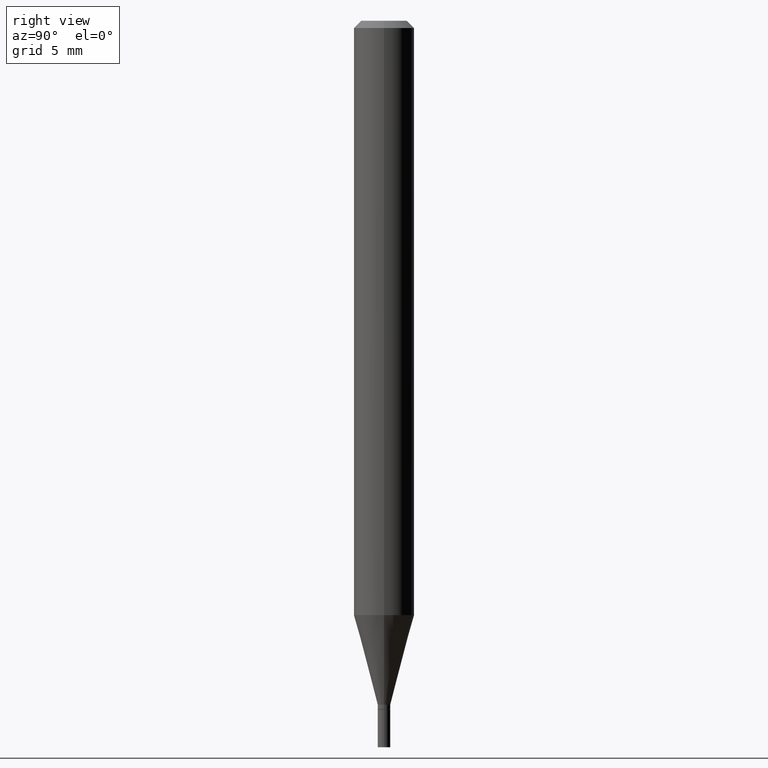
[diagram: clean part render]
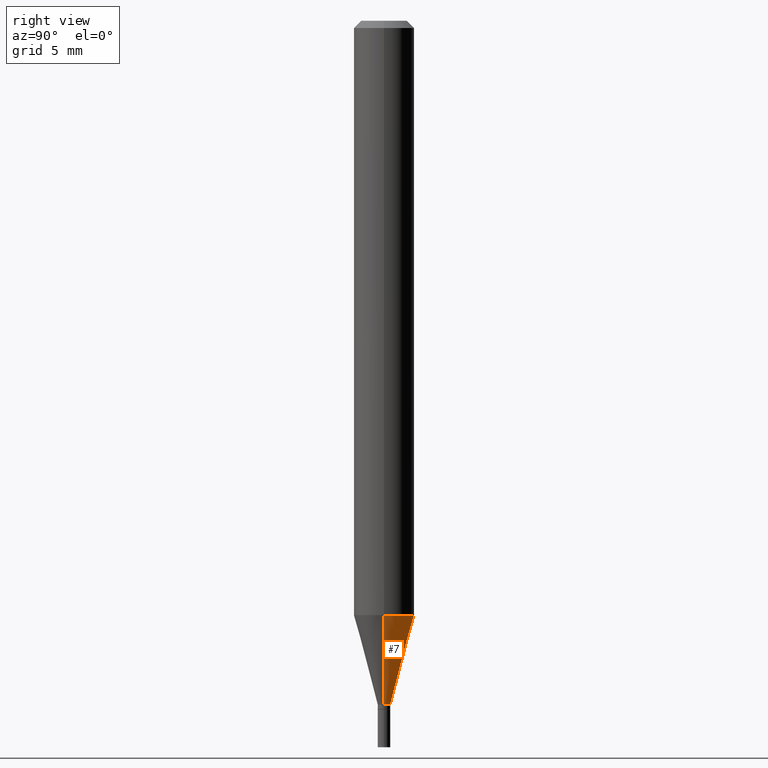
[diagram: same view with one face highlighted and labeled with its STEP entity id]
A machine part, right view. The second image highlights one B-rep face of the part: STEP entity #7.
In plain terms, the highlighted conical surface has half-angle 15 deg.
Its self-contained STEP definition (entity closure, byte-faithful):
#1 = CARTESIAN_POINT ( 'NONE',  ( 0.06249999999999999306, -4.721402723164972337E-15, -1.227263485025340550 ) ) ;
#7 = ADVANCED_FACE ( 'NONE', ( #202 ), #26, .T. ) ;
#24 = ORIENTED_EDGE ( 'NONE', *, *, #307, .F. ) ;
#26 = CONICAL_SURFACE ( 'NONE', #196, 0.01299999999999992134, 0.2617993877991495189 ) ;
#38 = AXIS2_PLACEMENT_3D ( 'NONE', #232, #54, #368 ) ;
#39 = CARTESIAN_POINT ( 'NONE',  ( 0.01299999999999992134, -5.020750165256443057E-15, -1.412000000000000144 ) ) ;
#54 = DIRECTION ( 'NONE',  ( -2.445468806185136597E-29, 3.491481338843145583E-15, 1.000000000000000000 ) ) ;
#60 = VERTEX_POINT ( 'NONE', #1 ) ;
#72 = VERTEX_POINT ( 'NONE', #39 ) ;
#82 = DIRECTION ( 'NONE',  ( 0.2588190451025207950, 1.565188264969625912E-15, 0.9659258262890682012 ) ) ;
#85 = AXIS2_PLACEMENT_3D ( 'NONE', #432, #363, #257 ) ;
#93 = VECTOR ( 'NONE', #82, 39.37007874015748854 ) ;
#114 = LINE ( 'NONE', #398, #93 ) ;
#123 = CARTESIAN_POINT ( 'NONE',  ( 3.453001954333413314E-29, -4.929971650446521716E-15, -1.412000000000000144 ) ) ;
#165 = VERTEX_POINT ( 'NONE', #429 ) ;
#186 = CARTESIAN_POINT ( 'NONE',  ( -0.01299999999999992134, -4.837601094797709398E-15, -1.412000000000000144 ) ) ;
#192 = ORIENTED_EDGE ( 'NONE', *, *, #226, .T. ) ;
#196 = AXIS2_PLACEMENT_3D ( 'NONE', #123, #406, #306 ) ;
#202 = FACE_OUTER_BOUND ( 'NONE', #204, .T. ) ;
#204 = EDGE_LOOP ( 'NONE', ( #457, #192, #382, #24 ) ) ;
#219 = CIRCLE ( 'NONE', #38, 0.06250000000000000000 ) ;
#222 = VECTOR ( 'NONE', #263, 39.37007874015748854 ) ;
#223 = CARTESIAN_POINT ( 'NONE',  ( -0.01299999999999992134, -4.339239720378613725E-15, -1.412000000000000144 ) ) ;
#226 = EDGE_CURVE ( 'NONE', #311, #165, #397, .T. ) ;
#232 = CARTESIAN_POINT ( 'NONE',  ( 3.001234569599529890E-29, -4.284967555809580668E-15, -1.227263485025340550 ) ) ;
#257 = DIRECTION ( 'NONE',  ( 1.000000000000000000, -6.982962677686299843E-15, 0.000000000000000000 ) ) ;
#263 = DIRECTION ( 'NONE',  ( -0.2588190451025207950, 5.211531920934546309E-15, 0.9659258262890682012 ) ) ;
#301 = EDGE_CURVE ( 'NONE', #72, #311, #395, .T. ) ;
#306 = DIRECTION ( 'NONE',  ( 1.000000000000000000, -6.982962677686299843E-15, 0.000000000000000000 ) ) ;
#307 = EDGE_CURVE ( 'NONE', #72, #60, #114, .T. ) ;
#311 = VERTEX_POINT ( 'NONE', #223 ) ;
#363 = DIRECTION ( 'NONE',  ( -2.445468806185136597E-29, 3.491481338843145583E-15, 1.000000000000000000 ) ) ;
#368 = DIRECTION ( 'NONE',  ( 1.000000000000000000, -6.982962677686270655E-15, 0.000000000000000000 ) ) ;
#379 = EDGE_CURVE ( 'NONE', #60, #165, #219, .T. ) ;
#382 = ORIENTED_EDGE ( 'NONE', *, *, #379, .F. ) ;
#395 = CIRCLE ( 'NONE', #85, 0.01299999999999992134 ) ;
#397 = LINE ( 'NONE', #186, #222 ) ;
#398 = CARTESIAN_POINT ( 'NONE',  ( 0.01299999999999992134, -5.020750165256443057E-15, -1.412000000000000144 ) ) ;
#406 = DIRECTION ( 'NONE',  ( -2.445468806185136597E-29, 3.491481338843145583E-15, 1.000000000000000000 ) ) ;
#429 = CARTESIAN_POINT ( 'NONE',  ( -0.06249999999999999306, -3.840878345959517263E-15, -1.227263485025340550 ) ) ;
#432 = CARTESIAN_POINT ( 'NONE',  ( 3.453001954333413314E-29, -4.929971650446521716E-15, -1.412000000000000144 ) ) ;
#457 = ORIENTED_EDGE ( 'NONE', *, *, #301, .T. ) ;